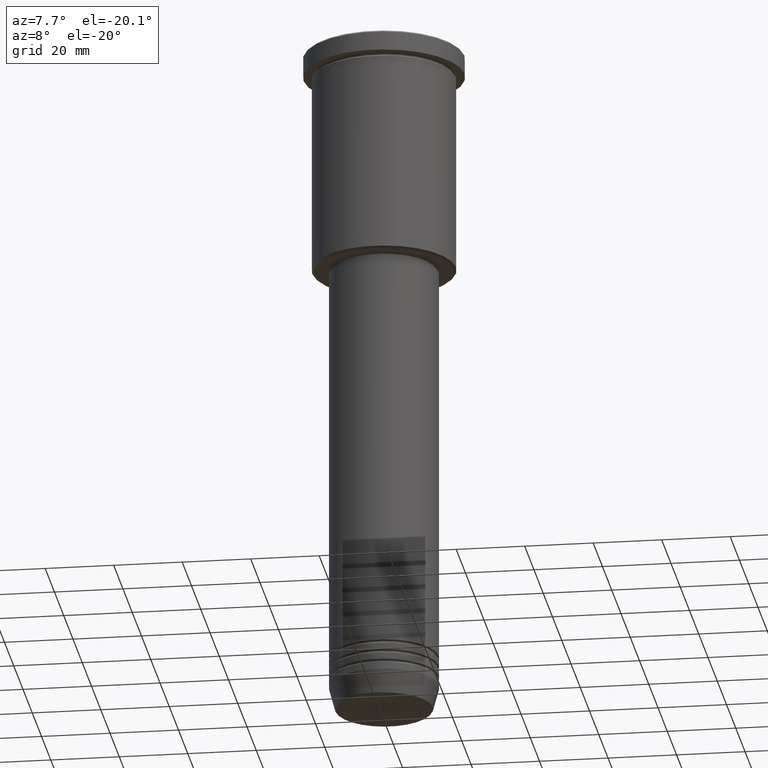
[diagram: clean part render]
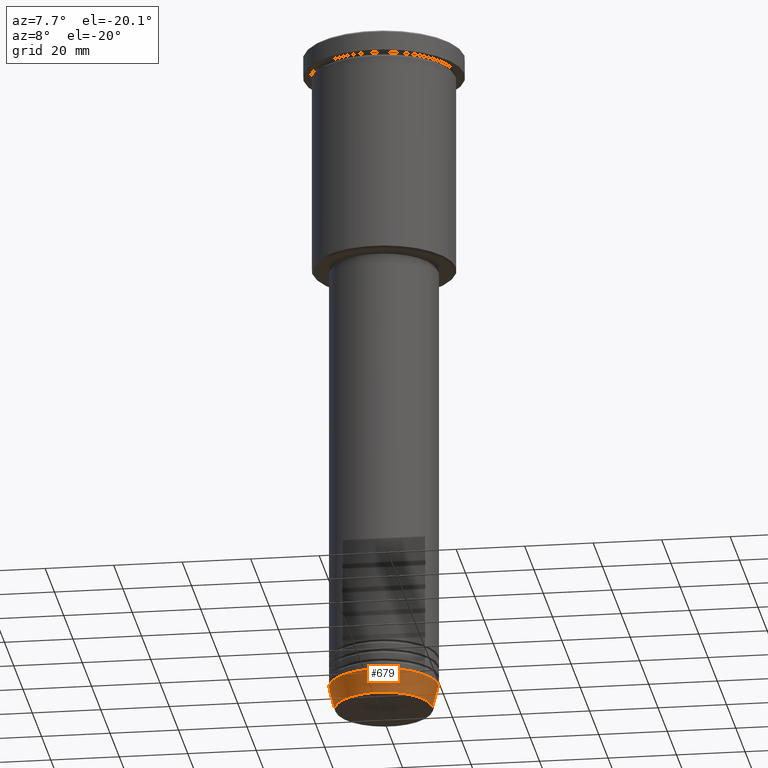
[diagram: same view with one face highlighted and labeled with its STEP entity id]
A machine part, auxiliary view. The second image highlights one B-rep face of the part: STEP entity #679.
In plain terms, the highlighted conical surface has half-angle 15 deg.
Its self-contained STEP definition (entity closure, byte-faithful):
#21 = VERTEX_POINT ( 'NONE', #484 ) ;
#30 = DIRECTION ( 'NONE',  ( 1.000000000000000000, 0.000000000000000000, 0.000000000000000000 ) ) ;
#60 = EDGE_CURVE ( 'NONE', #564, #245, #790, .T. ) ;
#98 = DIRECTION ( 'NONE',  ( -0.000000000000000000, -0.000000000000000000, 1.000000000000000000 ) ) ;
#113 = CARTESIAN_POINT ( 'NONE',  ( 14.22365507213719660, 0.000000000000000000, -200.6294095225512990 ) ) ;
#165 = EDGE_CURVE ( 'NONE', #245, #21, #705, .T. ) ;
#188 = VERTEX_POINT ( 'NONE', #113 ) ;
#191 = DIRECTION ( 'NONE',  ( 0.2588190451025213501, 0.000000000000000000, 0.9659258262890680902 ) ) ;
#239 = CIRCLE ( 'NONE', #1163, 14.22365507213719660 ) ;
#245 = VERTEX_POINT ( 'NONE', #1168 ) ;
#277 = CARTESIAN_POINT ( 'NONE',  ( 16.00000000000000000, 0.000000000000000000, -194.0000000000000284 ) ) ;
#326 = CARTESIAN_POINT ( 'NONE',  ( -14.22365507213719660, 1.850665122131324126E-15, -200.6294095225512990 ) ) ;
#405 = ORIENTED_EDGE ( 'NONE', *, *, #538, .T. ) ;
#411 = FACE_OUTER_BOUND ( 'NONE', #457, .T. ) ;
#457 = EDGE_LOOP ( 'NONE', ( #746, #405, #784, #698 ) ) ;
#458 = VECTOR ( 'NONE', #191, 1000.000000000000000 ) ;
#484 = CARTESIAN_POINT ( 'NONE',  ( 16.00000000000000000, 0.000000000000000000, -194.0000000000000284 ) ) ;
#507 = DIRECTION ( 'NONE',  ( 1.000000000000000000, 0.000000000000000000, 0.000000000000000000 ) ) ;
#538 = EDGE_CURVE ( 'NONE', #564, #188, #239, .T. ) ;
#551 = CONICAL_SURFACE ( 'NONE', #788, 16.00000000000000000, 0.2617993877991500740 ) ;
#564 = VERTEX_POINT ( 'NONE', #326 ) ;
#589 = CARTESIAN_POINT ( 'NONE',  ( 0.000000000000000000, 0.000000000000000000, -194.0000000000000284 ) ) ;
#679 = ADVANCED_FACE ( 'NONE', ( #411 ), #551, .T. ) ;
#688 = DIRECTION ( 'NONE',  ( -0.000000000000000000, -0.000000000000000000, 1.000000000000000000 ) ) ;
#698 = ORIENTED_EDGE ( 'NONE', *, *, #165, .F. ) ;
#705 = CIRCLE ( 'NONE', #1118, 16.00000000000000000 ) ;
#746 = ORIENTED_EDGE ( 'NONE', *, *, #60, .F. ) ;
#783 = DIRECTION ( 'NONE',  ( 1.000000000000000000, 0.000000000000000000, 0.000000000000000000 ) ) ;
#784 = ORIENTED_EDGE ( 'NONE', *, *, #943, .T. ) ;
#788 = AXIS2_PLACEMENT_3D ( 'NONE', #589, #1140, #507 ) ;
#790 = LINE ( 'NONE', #1145, #938 ) ;
#862 = CARTESIAN_POINT ( 'NONE',  ( 0.000000000000000000, 0.000000000000000000, -194.0000000000000284 ) ) ;
#938 = VECTOR ( 'NONE', #1154, 1000.000000000000000 ) ;
#943 = EDGE_CURVE ( 'NONE', #188, #21, #1112, .T. ) ;
#1043 = CARTESIAN_POINT ( 'NONE',  ( 0.000000000000000000, 0.000000000000000000, -200.6294095225512990 ) ) ;
#1112 = LINE ( 'NONE', #277, #458 ) ;
#1118 = AXIS2_PLACEMENT_3D ( 'NONE', #862, #688, #783 ) ;
#1140 = DIRECTION ( 'NONE',  ( -0.000000000000000000, -0.000000000000000000, 1.000000000000000000 ) ) ;
#1145 = CARTESIAN_POINT ( 'NONE',  ( -16.00000000000000000, 1.959434878635765131E-15, -194.0000000000000284 ) ) ;
#1154 = DIRECTION ( 'NONE',  ( -0.2588190451025213501, 3.169619151431772337E-17, 0.9659258262890680902 ) ) ;
#1163 = AXIS2_PLACEMENT_3D ( 'NONE', #1043, #98, #30 ) ;
#1168 = CARTESIAN_POINT ( 'NONE',  ( -16.00000000000000000, 1.959434878635765131E-15, -194.0000000000000284 ) ) ;